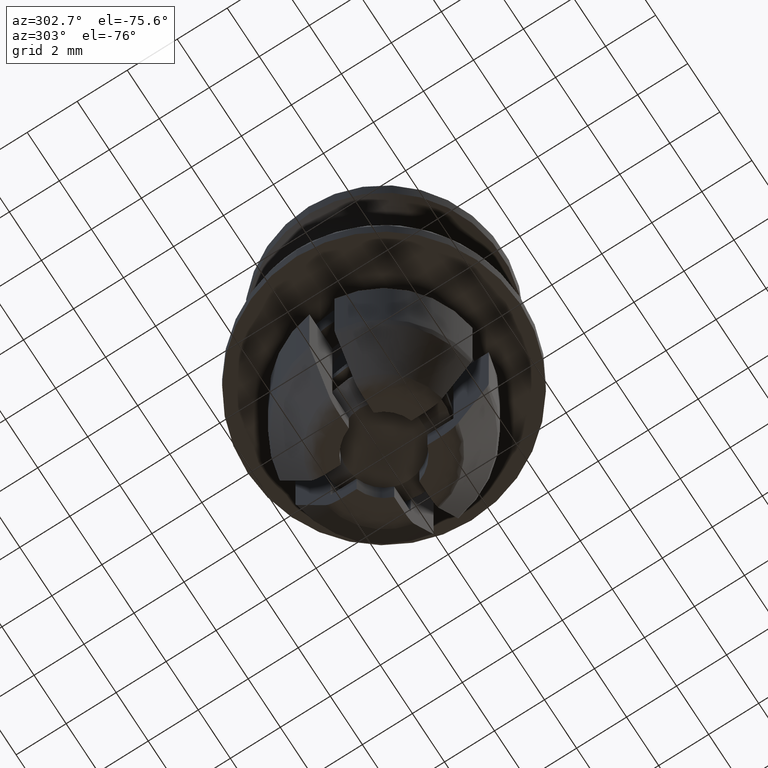
[diagram: clean part render]
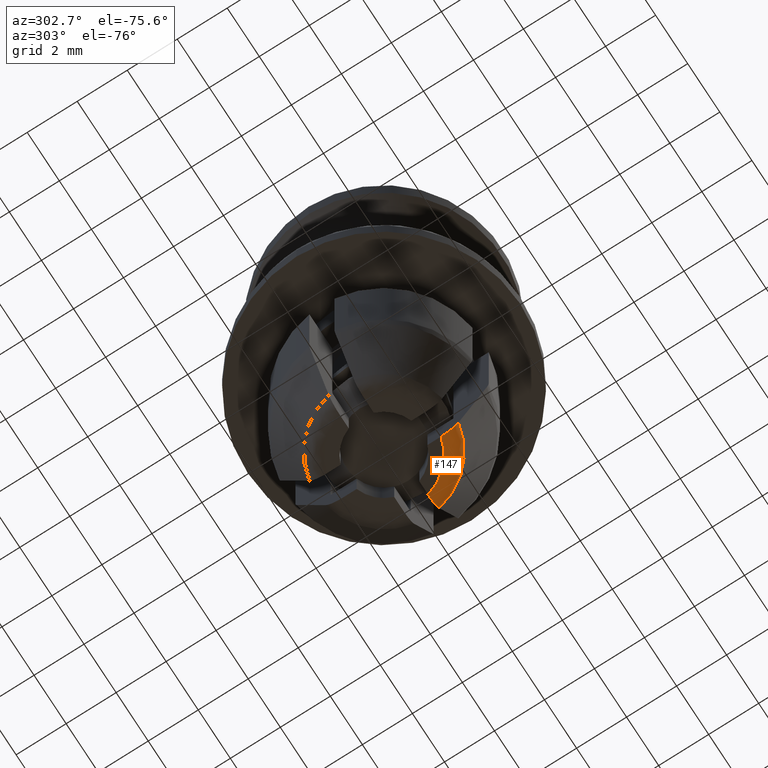
[diagram: same view with one face highlighted and labeled with its STEP entity id]
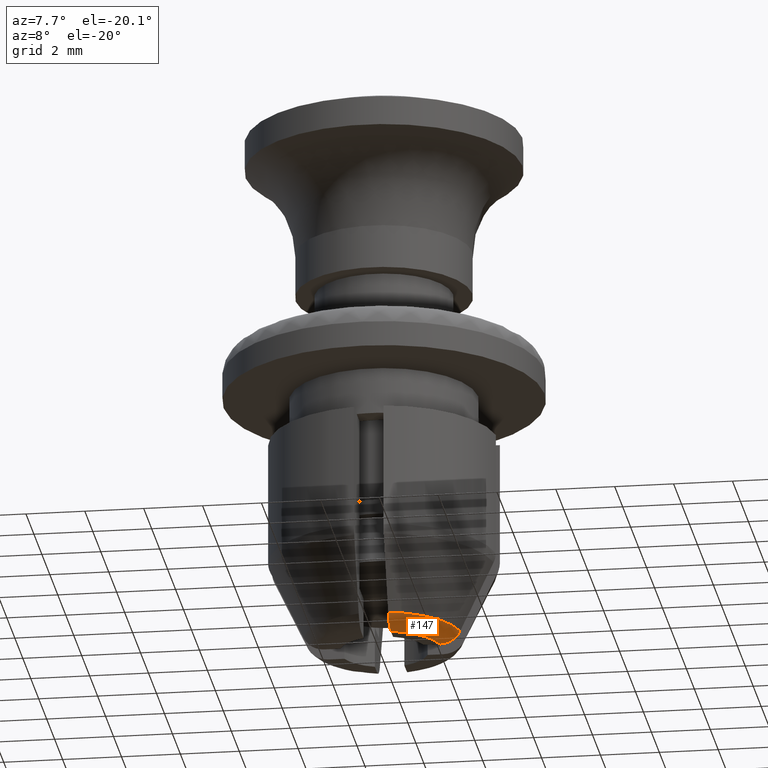
[diagram: same view with one face highlighted and labeled with its STEP entity id]
A machine part, auxiliary view. The second image highlights one B-rep face of the part: STEP entity #147.
A second angle (auxiliary view) of the same face is appended — the face is thin or edge-on in the first view.
In plain terms, the highlighted face is a freeform B-spline surface patch.
Its self-contained STEP definition (entity closure, byte-faithful):
#147=ADVANCED_FACE('',(#545),#544,.T.);
#544=( BOUNDED_SURFACE() B_SPLINE_SURFACE( 2,2,((#1212,#1213,#1214,#1215,#1216),(#1217,#1218,#1219,#1220,#1221),(#1222,#1223,#1224,#1225,#1226)), .UNSPECIFIED.,.F.,.F.,.F.) B_SPLINE_SURFACE_WITH_KNOTS((3,3),(3,2,3),(0.00000000000E+00,1.00000000000E+00),(0.00000000000E+00,5.00000000000E-01,1.00000000000E+00), .UNSPECIFIED. ) GEOMETRIC_REPRESENTATION_ITEM() RATIONAL_B_SPLINE_SURFACE(((1.00000000000E+00,8.43321154264E-01,1.00000000000E+00,8.43321154264E-01,1.00000000000E+00),(8.25662080171E-01,6.96298298482E-01,8.25662080171E-01,6.96298298482E-01,8.25662080171E-01),(1.00000000000E+00,8.43321154264E-01,1.00000000000E+00,8.43321154264E-01,1.00000000000E+00))) REPRESENTATION_ITEM('') SURFACE() );
#545=FACE_OUTER_BOUND('',#1227,.T.);
#1212=CARTESIAN_POINT('',(2.65556785545E+00,-4.99685533090E-01,-1.05670340292E+01));
#1213=CARTESIAN_POINT('',(2.45715260435E+00,-4.62350681971E-01,-1.10003000004E+01));
#1214=CARTESIAN_POINT('',(1.98739855278E+00,-3.73959303381E-01,-1.10003000004E+01));
#1215=CARTESIAN_POINT('',(1.51764450120E+00,-2.85567924792E-01,-1.10003000004E+01));
#1216=CARTESIAN_POINT('',(1.31922925010E+00,-2.48233073673E-01,-1.05670340292E+01));
#1217=CARTESIAN_POINT('',(2.31413873131E+00,-2.31420315855E+00,-1.05670340292E+01));
#1218=CARTESIAN_POINT('',(2.14123393563E+00,-2.14129354908E+00,-1.10003000004E+01));
#1219=CARTESIAN_POINT('',(1.73187665158E+00,-1.73192486823E+00,-1.10003000004E+01));
#1220=CARTESIAN_POINT('',(1.32251936752E+00,-1.32255618738E+00,-1.10003000004E+01));
#1221=CARTESIAN_POINT('',(1.14961457184E+00,-1.14964657792E+00,-1.05670340292E+01));
#1222=CARTESIAN_POINT('',(4.99611601060E-01,-2.65558176582E+00,-1.05670340292E+01));
#1223=CARTESIAN_POINT('',(4.62282273898E-01,-2.45716547538E+00,-1.10003000004E+01));
#1224=CARTESIAN_POINT('',(3.73903973442E-01,-1.98740896315E+00,-1.10003000004E+01));
#1225=CARTESIAN_POINT('',(2.85525672986E-01,-1.51765245091E+00,-1.10003000004E+01));
#1226=CARTESIAN_POINT('',(2.48196345824E-01,-1.31923616048E+00,-1.05670340292E+01));
#1227=EDGE_LOOP('',(#1780,#1781,#1782,#1783));
#1780=ORIENTED_EDGE('',*,*,#2116,.F.);
#1781=ORIENTED_EDGE('',*,*,#2121,.T.);
#1782=ORIENTED_EDGE('',*,*,#2122,.T.);
#1783=ORIENTED_EDGE('',*,*,#2045,.T.);
#2045=EDGE_CURVE('',#2523,#2516,#2524,.T.);
#2116=EDGE_CURVE('',#2983,#2516,#2990,.T.);
#2121=EDGE_CURVE('',#2983,#3021,#3022,.T.);
#2122=EDGE_CURVE('',#3021,#2523,#3028,.T.);
#2516=VERTEX_POINT('',#3710);
#2523=VERTEX_POINT('',#3714);
#2524=(BOUNDED_CURVE() B_SPLINE_CURVE(3,(#3715,#3716,#3717,#3718,#3719,#3720),.UNSPECIFIED.,.F.,.F.) B_SPLINE_CURVE_WITH_KNOTS((4,2,4),(4.53704245333E-03,4.96659459827E-03,5.39612859432E-03),.UNSPECIFIED.) CURVE() GEOMETRIC_REPRESENTATION_ITEM() RATIONAL_B_SPLINE_CURVE((1.00000000000E+00,1.00000000000E+00,1.00000000000E+00,1.00000000000E+00,1.00000000000E+00,1.00000000000E+00)) REPRESENTATION_ITEM('') );
#2983=VERTEX_POINT('',#4020);
#2990=CIRCLE('',#4027,2.02230000000E+00);
#3021=VERTEX_POINT('',#4047);
#3022=(BOUNDED_CURVE() B_SPLINE_CURVE(3,(#4048,#4049,#4050,#4051,#4052,#4053),.UNSPECIFIED.,.F.,.F.) B_SPLINE_CURVE_WITH_KNOTS((4,2,4),(4.64330165083E-04,8.94511229238E-04,1.32471041888E-03),.UNSPECIFIED.) CURVE() GEOMETRIC_REPRESENTATION_ITEM() RATIONAL_B_SPLINE_CURVE((1.00000000000E+00,1.00000000000E+00,1.00000000000E+00,1.00000000000E+00,1.00000000000E+00,1.00000000000E+00)) REPRESENTATION_ITEM('') );
#3028=CIRCLE('',#4057,2.70200000000E+00);
#3710=CARTESIAN_POINT('',(5.00004366197E-01,-1.95950752863E+00,-1.10003000000E+01));
#3714=CARTESIAN_POINT('',(5.00000000000E-01,-2.65533500711E+00,-1.05674000000E+01));
#3715=CARTESIAN_POINT('',(5.00000000000E-01,-2.65533500711E+00,-1.05674000000E+01));
#3716=CARTESIAN_POINT('',(5.00000000000E-01,-2.59380589463E+00,-1.06969771391E+01));
#3717=CARTESIAN_POINT('',(5.00000000000E-01,-2.49239977132E+00,-1.08093185071E+01));
#3718=CARTESIAN_POINT('',(5.00000000000E-01,-2.24780289933E+00,-1.09601820029E+01));
#3719=CARTESIAN_POINT('',(5.00000000000E-01,-2.10280856637E+00,-1.10002966106E+01));
#3720=CARTESIAN_POINT('',(5.00000000000E-01,-1.95950752863E+00,-1.10003000002E+01));
#4020=CARTESIAN_POINT('',(1.95950752863E+00,-5.00004366201E-01,-1.10003000000E+01));
#4024=CARTESIAN_POINT('',(0.00000000000E+00,0.00000000000E+00,-1.10003000000E+01));
#4025=DIRECTION('',(0.00000000000E+00,0.00000000000E+00,-1.00000000000E+00));
#4026=DIRECTION('',(1.00000000000E+00,-0.00000000000E+00,-0.00000000000E+00));
#4027=AXIS2_PLACEMENT_3D('',#4024,#4025,#4026);
#4047=CARTESIAN_POINT('',(2.65533500711E+00,-5.00000000000E-01,-1.05674000000E+01));
#4048=CARTESIAN_POINT('',(1.95950752863E+00,-5.00000000000E-01,-1.10003000002E+01));
#4049=CARTESIAN_POINT('',(2.10320985077E+00,-5.00000000000E-01,-1.10002966022E+01));
#4050=CARTESIAN_POINT('',(2.24835396483E+00,-5.00000000000E-01,-1.09599705531E+01));
#4051=CARTESIAN_POINT('',(2.49284148277E+00,-5.00000000000E-01,-1.08089170998E+01));
#4052=CARTESIAN_POINT('',(2.59300913039E+00,-5.00000000000E-01,-1.06986550835E+01));
#4053=CARTESIAN_POINT('',(2.65533500711E+00,-5.00000000000E-01,-1.05674000000E+01));
#4054=CARTESIAN_POINT('',(0.00000000000E+00,0.00000000000E+00,-1.05674000000E+01));
#4055=DIRECTION('',(0.00000000000E+00,0.00000000000E+00,-1.00000000000E+00));
#4056=DIRECTION('',(1.00000000000E+00,-0.00000000000E+00,-0.00000000000E+00));
#4057=AXIS2_PLACEMENT_3D('',#4054,#4055,#4056);